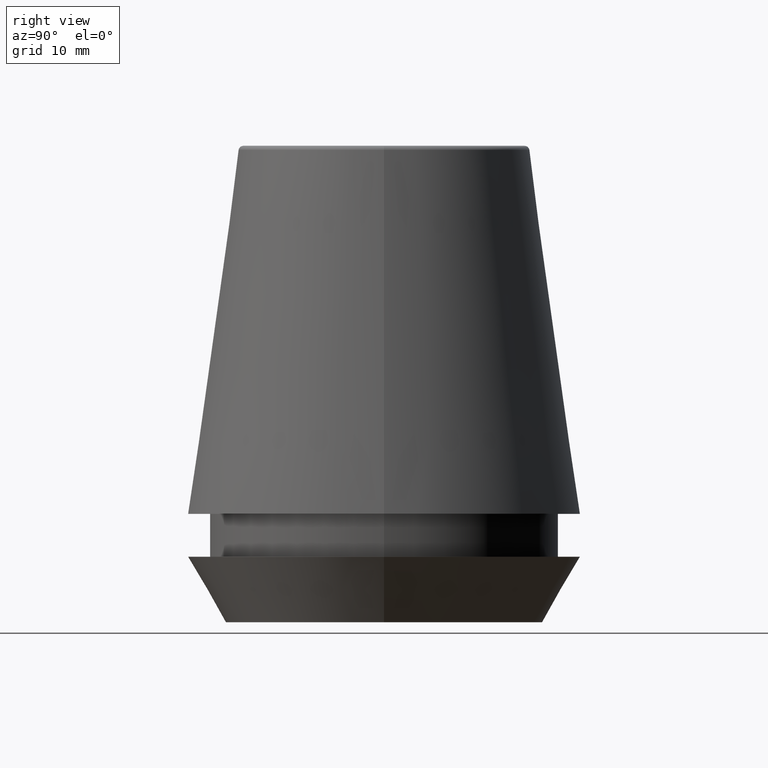
[diagram: clean part render]
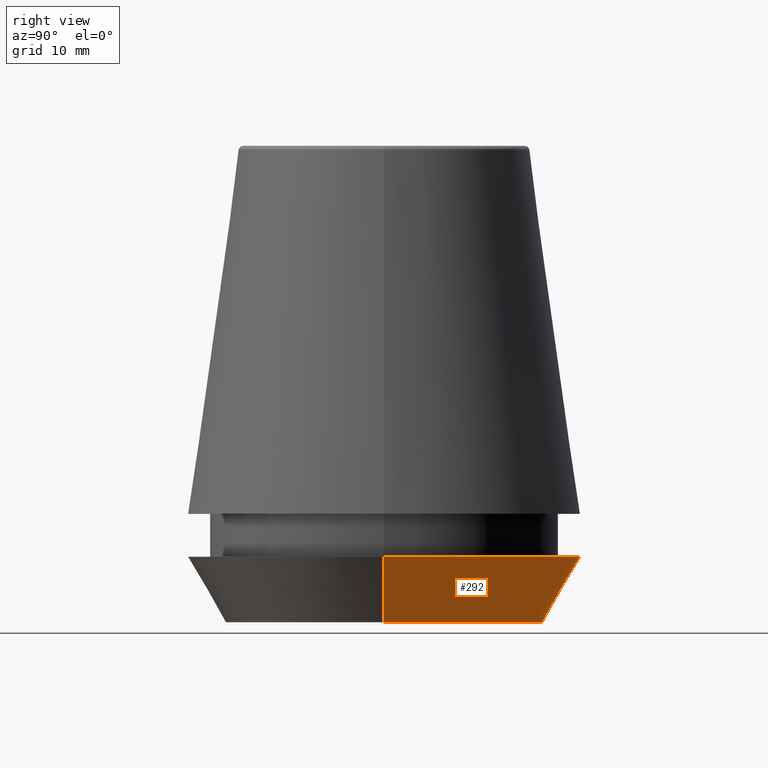
[diagram: same view with one face highlighted and labeled with its STEP entity id]
A machine part, right view. The second image highlights one B-rep face of the part: STEP entity #292.
In plain terms, the highlighted conical surface has half-angle 30 deg.
Its self-contained STEP definition (entity closure, byte-faithful):
#19 = ORIENTED_EDGE ( 'NONE', *, *, #168, .T. ) ;
#23 = VERTEX_POINT ( 'NONE', #127 ) ;
#34 = VERTEX_POINT ( 'NONE', #383 ) ;
#35 = DIRECTION ( 'NONE',  ( -0.0000000000000000000, -0.0000000000000000000, 1.000000000000000000 ) ) ;
#59 = LINE ( 'NONE', #215, #247 ) ;
#71 = AXIS2_PLACEMENT_3D ( 'NONE', #217, #35, #135 ) ;
#76 = CARTESIAN_POINT ( 'NONE',  ( 13.32457351945710200, 0.0000000000000000000, 0.0000000000000000000 ) ) ;
#78 = CARTESIAN_POINT ( 'NONE',  ( 13.32457351945710200, 0.0000000000000000000, 0.0000000000000000000 ) ) ;
#79 = AXIS2_PLACEMENT_3D ( 'NONE', #340, #98, #279 ) ;
#89 = ORIENTED_EDGE ( 'NONE', *, *, #169, .T. ) ;
#98 = DIRECTION ( 'NONE',  ( -0.0000000000000000000, -0.0000000000000000000, 1.000000000000000000 ) ) ;
#106 = DIRECTION ( 'NONE',  ( 1.000000000000000000, 0.0000000000000000000, 0.0000000000000000000 ) ) ;
#120 = CONICAL_SURFACE ( 'NONE', #257, 13.32457351945710200, 0.5235987755982927100 ) ;
#127 = CARTESIAN_POINT ( 'NONE',  ( 16.50000000000000000, 0.0000000000000000000, 5.500000000000005300 ) ) ;
#135 = DIRECTION ( 'NONE',  ( 1.000000000000000000, 0.0000000000000000000, 0.0000000000000000000 ) ) ;
#168 = EDGE_CURVE ( 'NONE', #315, #34, #387, .T. ) ;
#169 = EDGE_CURVE ( 'NONE', #34, #316, #59, .T. ) ;
#171 = CIRCLE ( 'NONE', #71, 16.50000000000000000 ) ;
#178 = EDGE_CURVE ( 'NONE', #23, #316, #171, .T. ) ;
#188 = LINE ( 'NONE', #78, #268 ) ;
#198 = EDGE_LOOP ( 'NONE', ( #19, #89, #254, #278 ) ) ;
#215 = CARTESIAN_POINT ( 'NONE',  ( -13.32457351945710200, 1.631789631060672300E-015, 0.0000000000000000000 ) ) ;
#217 = CARTESIAN_POINT ( 'NONE',  ( 0.0000000000000000000, 0.0000000000000000000, 5.500000000000005300 ) ) ;
#223 = DIRECTION ( 'NONE',  ( -0.0000000000000000000, -0.0000000000000000000, 1.000000000000000000 ) ) ;
#226 = CARTESIAN_POINT ( 'NONE',  ( -16.50000000000000000, 2.020667218593133100E-015, 5.500000000000005300 ) ) ;
#241 = DIRECTION ( 'NONE',  ( -0.4999999999999947300, 6.123233995736700700E-017, 0.8660254037844418200 ) ) ;
#247 = VECTOR ( 'NONE', #241, 999.9999999999998900 ) ;
#254 = ORIENTED_EDGE ( 'NONE', *, *, #178, .F. ) ;
#257 = AXIS2_PLACEMENT_3D ( 'NONE', #382, #223, #106 ) ;
#268 = VECTOR ( 'NONE', #322, 999.9999999999998900 ) ;
#278 = ORIENTED_EDGE ( 'NONE', *, *, #361, .F. ) ;
#279 = DIRECTION ( 'NONE',  ( 1.000000000000000000, 0.0000000000000000000, 0.0000000000000000000 ) ) ;
#290 = FACE_OUTER_BOUND ( 'NONE', #198, .T. ) ;
#292 = ADVANCED_FACE ( 'NONE', ( #290 ), #120, .T. ) ;
#315 = VERTEX_POINT ( 'NONE', #76 ) ;
#316 = VERTEX_POINT ( 'NONE', #226 ) ;
#322 = DIRECTION ( 'NONE',  ( 0.4999999999999947300, 0.0000000000000000000, 0.8660254037844418200 ) ) ;
#340 = CARTESIAN_POINT ( 'NONE',  ( 0.0000000000000000000, 0.0000000000000000000, 0.0000000000000000000 ) ) ;
#361 = EDGE_CURVE ( 'NONE', #315, #23, #188, .T. ) ;
#382 = CARTESIAN_POINT ( 'NONE',  ( 0.0000000000000000000, 0.0000000000000000000, 0.0000000000000000000 ) ) ;
#383 = CARTESIAN_POINT ( 'NONE',  ( -13.32457351945710200, 1.826228424826902600E-015, 0.0000000000000000000 ) ) ;
#387 = CIRCLE ( 'NONE', #79, 13.32457351945710200 ) ;